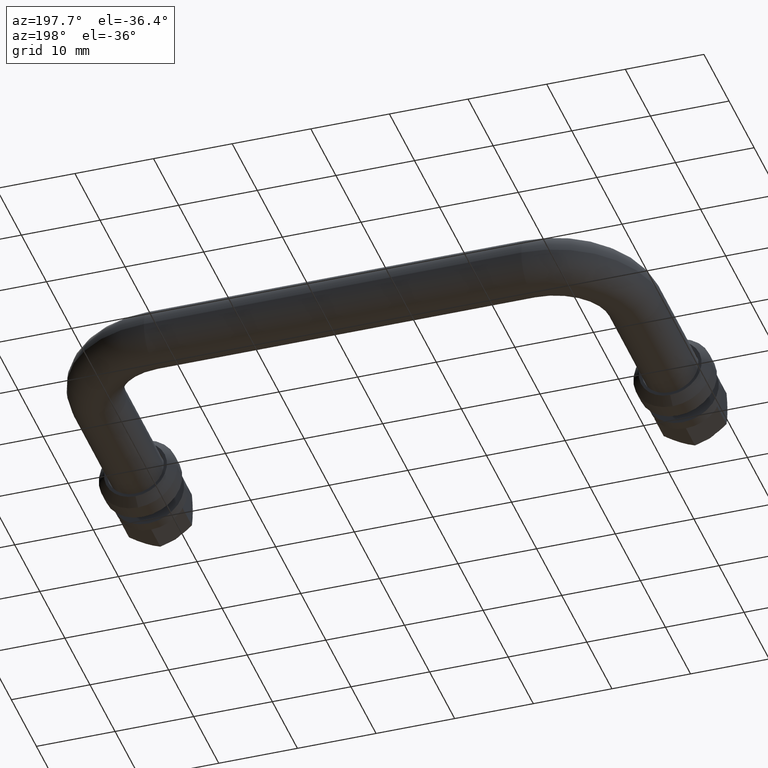
[diagram: clean part render]
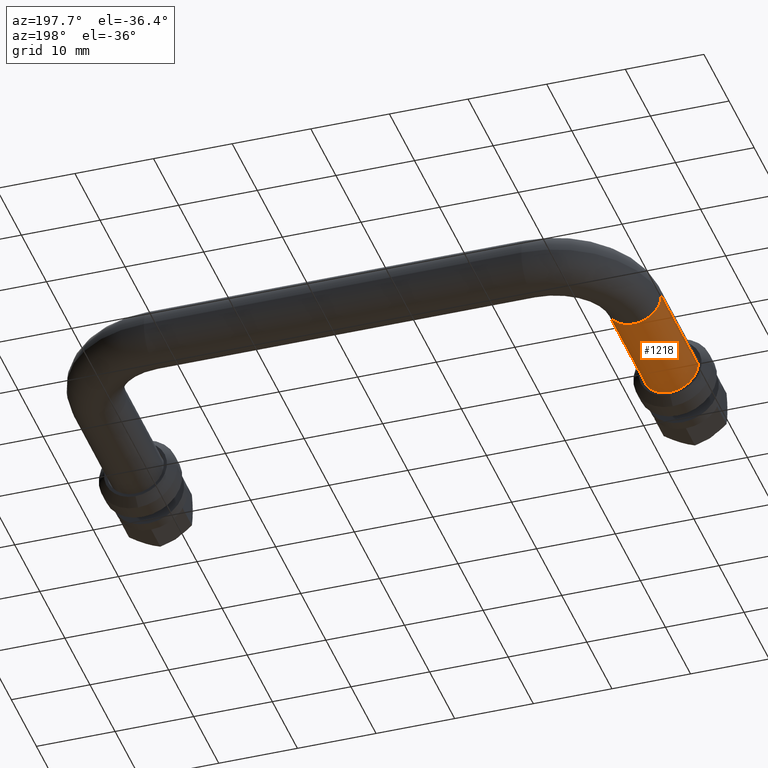
[diagram: same view with one face highlighted and labeled with its STEP entity id]
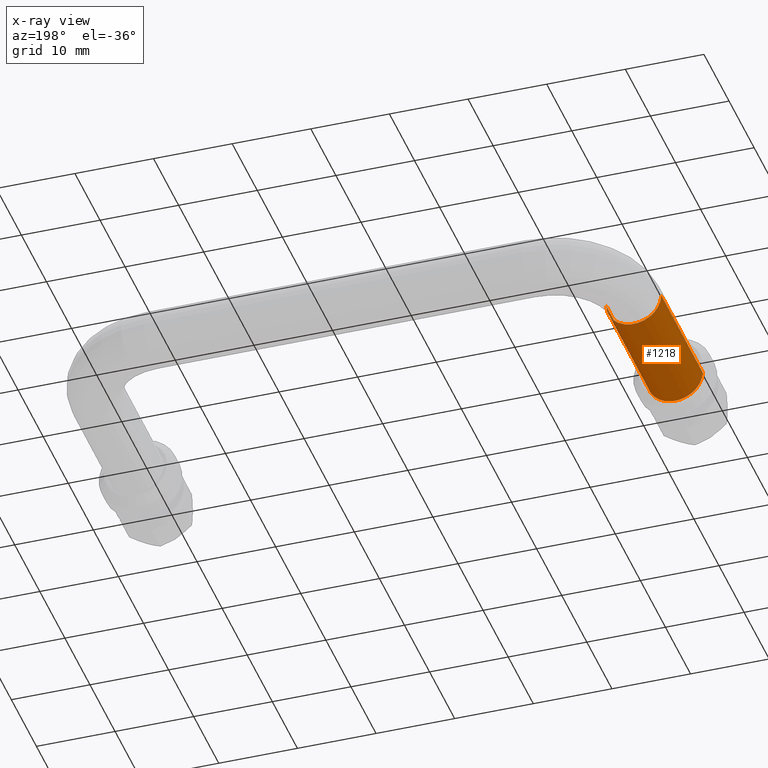
[diagram: x-ray of the same camera — body ghosted, the highlighted face saturated]
A machine part, auxiliary view. The second image highlights one B-rep face of the part: STEP entity #1218.
The next image is the same camera in x-ray: the body ghosted, the highlighted face saturated — about 0% of this face is hidden behind the body in this view.
In plain terms, the highlighted cylindrical surface (edge-blend (fillet) strip) has radius 3.5 mm, axis along (0, -1, 0).
Its self-contained STEP definition (entity closure, byte-faithful):
#54 = VERTEX_POINT ( 'NONE', #515 ) ;
#132 = ORIENTED_EDGE ( 'NONE', *, *, #1593, .F. ) ;
#161 = EDGE_CURVE ( 'NONE', #351, #54, #181, .T. ) ;
#181 = CIRCLE ( 'NONE', #375, 3.500000000000000000 ) ;
#262 = FACE_OUTER_BOUND ( 'NONE', #657, .T. ) ;
#330 = CARTESIAN_POINT ( 'NONE',  ( -30.50000000000000400, 16.50000000000001100, 0.0000000000000000000 ) ) ;
#338 = CARTESIAN_POINT ( 'NONE',  ( -30.49999999999999600, 0.0000000000000000000, 0.0000000000000000000 ) ) ;
#351 = VERTEX_POINT ( 'NONE', #330 ) ;
#356 = DIRECTION ( 'NONE',  ( 0.0000000000000000000, 1.000000000000000000, 0.0000000000000000000 ) ) ;
#365 = EDGE_CURVE ( 'NONE', #817, #1365, #1499, .T. ) ;
#375 = AXIS2_PLACEMENT_3D ( 'NONE', #605, #889, #1129 ) ;
#386 = DIRECTION ( 'NONE',  ( 1.000000000000000000, 0.0000000000000000000, 0.0000000000000000000 ) ) ;
#389 = CARTESIAN_POINT ( 'NONE',  ( -37.50000000000000700, 16.50000000000001100, 4.286263797015736600E-016 ) ) ;
#514 = VECTOR ( 'NONE', #1146, 1000.000000000000000 ) ;
#515 = CARTESIAN_POINT ( 'NONE',  ( -37.50000000000000700, 16.50000000000001100, 4.286263797015732700E-016 ) ) ;
#517 = VECTOR ( 'NONE', #812, 1000.000000000000000 ) ;
#545 = EDGE_CURVE ( 'NONE', #351, #817, #551, .T. ) ;
#551 = LINE ( 'NONE', #1692, #514 ) ;
#605 = CARTESIAN_POINT ( 'NONE',  ( -34.00000000000000000, 16.50000000000001100, 0.0000000000000000000 ) ) ;
#615 = AXIS2_PLACEMENT_3D ( 'NONE', #1402, #356, #1320 ) ;
#657 = EDGE_LOOP ( 'NONE', ( #132, #998, #1145, #1663 ) ) ;
#672 = AXIS2_PLACEMENT_3D ( 'NONE', #1777, #1350, #386 ) ;
#812 = DIRECTION ( 'NONE',  ( 4.205390244792256900E-016, -1.000000000000000000, -0.0000000000000000000 ) ) ;
#817 = VERTEX_POINT ( 'NONE', #338 ) ;
#884 = LINE ( 'NONE', #389, #517 ) ;
#889 = DIRECTION ( 'NONE',  ( 0.0000000000000000000, 1.000000000000000000, 0.0000000000000000000 ) ) ;
#959 = CYLINDRICAL_SURFACE ( 'NONE', #672, 3.499999999999999600 ) ;
#998 = ORIENTED_EDGE ( 'NONE', *, *, #161, .F. ) ;
#1129 = DIRECTION ( 'NONE',  ( 0.0000000000000000000, 0.0000000000000000000, 1.000000000000000000 ) ) ;
#1145 = ORIENTED_EDGE ( 'NONE', *, *, #545, .T. ) ;
#1146 = DIRECTION ( 'NONE',  ( 4.205390244792256900E-016, -1.000000000000000000, -0.0000000000000000000 ) ) ;
#1218 = ADVANCED_FACE ( 'NONE', ( #262 ), #959, .T. ) ;
#1320 = DIRECTION ( 'NONE',  ( 0.0000000000000000000, 0.0000000000000000000, 1.000000000000000000 ) ) ;
#1350 = DIRECTION ( 'NONE',  ( 4.205390244792256900E-016, -1.000000000000000000, -0.0000000000000000000 ) ) ;
#1365 = VERTEX_POINT ( 'NONE', #1773 ) ;
#1402 = CARTESIAN_POINT ( 'NONE',  ( -33.99999999999999300, 0.0000000000000000000, 0.0000000000000000000 ) ) ;
#1499 = CIRCLE ( 'NONE', #615, 3.500000000000000000 ) ;
#1593 = EDGE_CURVE ( 'NONE', #54, #1365, #884, .T. ) ;
#1663 = ORIENTED_EDGE ( 'NONE', *, *, #365, .T. ) ;
#1692 = CARTESIAN_POINT ( 'NONE',  ( -30.50000000000000400, 16.50000000000001100, 0.0000000000000000000 ) ) ;
#1773 = CARTESIAN_POINT ( 'NONE',  ( -37.50000000000000000, 0.0000000000000000000, 4.286263797015732700E-016 ) ) ;
#1777 = CARTESIAN_POINT ( 'NONE',  ( -34.00000000000000000, 16.50000000000001100, 0.0000000000000000000 ) ) ;